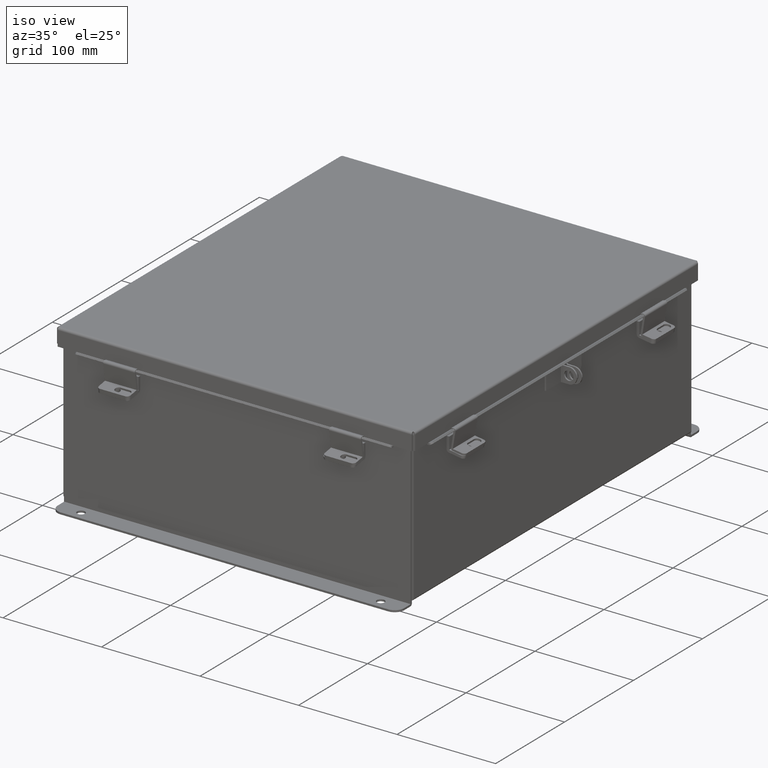
[diagram: clean part render]
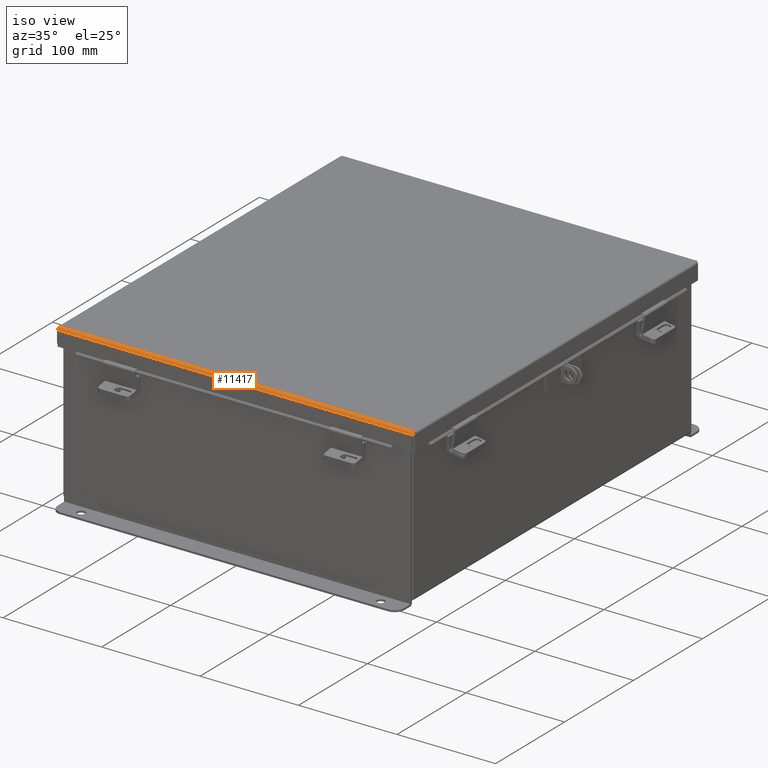
[diagram: same view with one face highlighted and labeled with its STEP entity id]
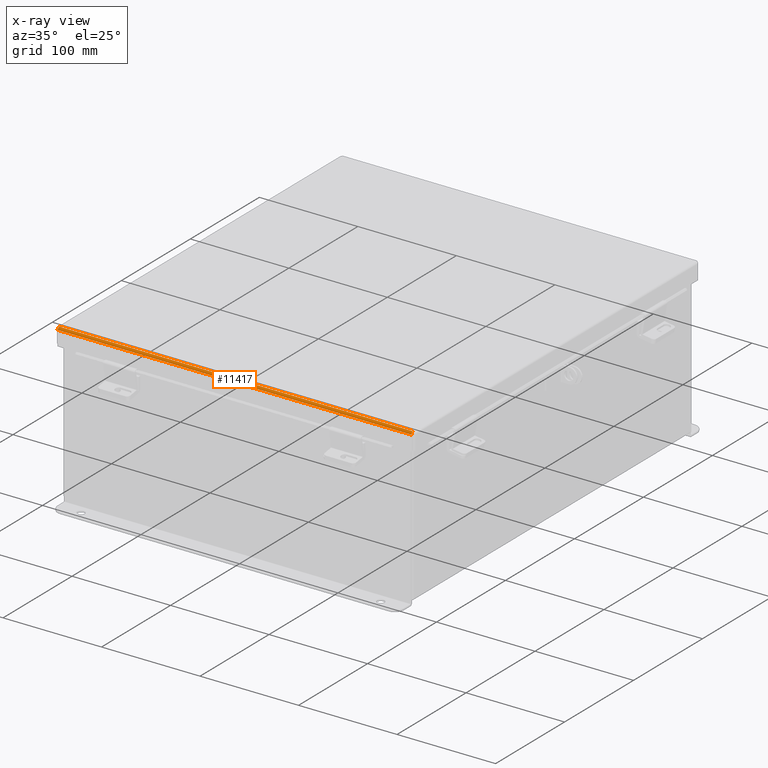
[diagram: x-ray of the same camera — body ghosted, the highlighted face saturated]
A machine part, iso view. The second image highlights one B-rep face of the part: STEP entity #11417.
The next image is the same camera in x-ray: the body ghosted, the highlighted face saturated — about 0% of this face is hidden behind the body in this view.
In plain terms, the highlighted cylindrical surface (edge-blend (fillet) strip) has radius 2.2276 mm, axis along (-1, 0, -0).
Its self-contained STEP definition (entity closure, byte-faithful):
#58 = VERTEX_POINT ( 'NONE', #5121 ) ;
#723 = ORIENTED_EDGE ( 'NONE', *, *, #6575, .T. ) ;
#1746 = EDGE_CURVE ( 'NONE', #12800, #58, #14318, .T. ) ;
#1752 = VERTEX_POINT ( 'NONE', #10792 ) ;
#2005 = VECTOR ( 'NONE', #3167, 39.37007874015748100 ) ;
#3121 = CARTESIAN_POINT ( 'NONE',  ( -7.074478932188133800, -8.156249999999998200, 0.01300000000000010700 ) ) ;
#3167 = DIRECTION ( 'NONE',  ( -1.000000000000000000, 2.239330294933626500E-032, -0.0000000000000000000 ) ) ;
#3175 = DIRECTION ( 'NONE',  ( -1.000000000000000000, -2.258600338820354400E-033, -0.0000000000000000000 ) ) ;
#3244 = CYLINDRICAL_SURFACE ( 'NONE', #18877, 0.08770000000000026400 ) ;
#3296 = CARTESIAN_POINT ( 'NONE',  ( -7.070526310729377400, -8.112717384578523600, -0.06363106625866844800 ) ) ;
#4874 = CARTESIAN_POINT ( 'NONE',  ( -7.072008543776412600, -8.138680782078321100, -0.04089574734180014700 ) ) ;
#5121 = CARTESIAN_POINT ( 'NONE',  ( 7.068550000000001000, -8.068549999999998300, -0.07470000000000015500 ) ) ;
#5377 = VERTEX_POINT ( 'NONE', #3121 ) ;
#6037 = CARTESIAN_POINT ( 'NONE',  ( -7.156249999999999100, -8.156249999999998200, 0.01300000000000010700 ) ) ;
#6334 = CARTESIAN_POINT ( 'NONE',  ( 7.074478932188133800, -8.156249999999998200, 0.01300000000000010700 ) ) ;
#6366 = CARTESIAN_POINT ( 'NONE',  ( -7.069044077682343100, -8.080029903154988700, -0.07469999999999998900 ) ) ;
#6438 = CARTESIAN_POINT ( 'NONE',  ( -7.073490776823442500, -8.153967403743807900, -0.009955289458309037400 ) ) ;
#6575 = EDGE_CURVE ( 'NONE', #12800, #5377, #18569, .T. ) ;
#6661 = ORIENTED_EDGE ( 'NONE', *, *, #9043, .F. ) ;
#7822 = CARTESIAN_POINT ( 'NONE',  ( 7.074478932188133800, -8.068549999999998300, -0.07470000000000015500 ) ) ;
#8020 = CARTESIAN_POINT ( 'NONE',  ( -7.074478932188133800, -8.156249999999998200, 0.01300000000000010700 ) ) ;
#8391 = VECTOR ( 'NONE', #3175, 39.37007874015748100 ) ;
#8473 = CARTESIAN_POINT ( 'NONE',  ( 7.072502621458754700, -8.145181066258663400, -0.03116738457852799200 ) ) ;
#9043 = EDGE_CURVE ( 'NONE', #1752, #5377, #15828, .T. ) ;
#9268 = EDGE_LOOP ( 'NONE', ( #12828, #19372, #723, #6661 ) ) ;
#9334 = DIRECTION ( 'NONE',  ( 1.000000000000000000, 2.258600338820354400E-033, 0.0000000000000000000 ) ) ;
#10792 = CARTESIAN_POINT ( 'NONE',  ( -7.068549999999999200, -8.068549999999998300, -0.07469999999999907300 ) ) ;
#11417 = ADVANCED_FACE ( 'NONE', ( #15657 ), #3244, .T. ) ;
#11432 = EDGE_CURVE ( 'NONE', #58, #1752, #16164, .T. ) ;
#12009 = CARTESIAN_POINT ( 'NONE',  ( 7.069538155364692300, -8.091505289458305900, -0.07241740374381128200 ) ) ;
#12448 = DIRECTION ( 'NONE',  ( 0.0000000000000000000, -1.000000000000000000, -3.577373637655407700E-015 ) ) ;
#12478 = CARTESIAN_POINT ( 'NONE',  ( 7.072008543776411700, -8.138680782078321100, -0.04089574734180012600 ) ) ;
#12638 = CARTESIAN_POINT ( 'NONE',  ( -7.069538155364692300, -8.091505289458309500, -0.07241740374381128200 ) ) ;
#12800 = VERTEX_POINT ( 'NONE', #13197 ) ;
#12828 = ORIENTED_EDGE ( 'NONE', *, *, #11432, .F. ) ;
#13162 = CARTESIAN_POINT ( 'NONE',  ( 7.073490776823444300, -8.153967403743809700, -0.009955289458309040900 ) ) ;
#13197 = CARTESIAN_POINT ( 'NONE',  ( 7.074478932188133800, -8.156249999999998200, 0.01300000000000010700 ) ) ;
#13558 = CARTESIAN_POINT ( 'NONE',  ( 7.068550000000001000, -8.068549999999998300, -0.07470000000000015500 ) ) ;
#13619 = CARTESIAN_POINT ( 'NONE',  ( 7.069044077682346700, -8.080029903154992300, -0.07469999999999998900 ) ) ;
#14008 = CARTESIAN_POINT ( 'NONE',  ( 7.074478932188133800, -8.068549999999998300, 0.01300000000000010700 ) ) ;
#14176 = CARTESIAN_POINT ( 'NONE',  ( -7.071020388411720400, -8.122445747341799900, -0.05713078207832045200 ) ) ;
#14318 = B_SPLINE_CURVE_WITH_KNOTS ( 'NONE', 3,
 ( #6334, #15302, #13162, #8473, #12478, #16490, #18199, #12009, #13619, #13558 ),
 .UNSPECIFIED., .F., .F.,
 ( 4, 2, 2, 2, 4 ),
 ( 0.0000000000000000000, 0.2500000000000000000, 0.5000000000000000000, 0.7500000000000000000, 1.000000000000000000 ),
 .UNSPECIFIED. ) ;
#15302 = CARTESIAN_POINT ( 'NONE',  ( 7.073984854505790000, -8.156250000000000000, 0.001520096845007104900 ) ) ;
#15657 = FACE_OUTER_BOUND ( 'NONE', #9268, .T. ) ;
#15756 = CARTESIAN_POINT ( 'NONE',  ( -7.072502621458754700, -8.145181066258665200, -0.03116738457852800300 ) ) ;
#15828 = B_SPLINE_CURVE_WITH_KNOTS ( 'NONE', 3,
 ( #18798, #6366, #12638, #3296, #14176, #4874, #15756, #6438, #17319, #8020 ),
 .UNSPECIFIED., .F., .F.,
 ( 4, 2, 2, 2, 4 ),
 ( 0.0000000000000000000, 0.2500000000000000000, 0.5000000000000000000, 0.7500000000000000000, 1.000000000000000000 ),
 .UNSPECIFIED. ) ;
#16164 = LINE ( 'NONE', #7822, #8391 ) ;
#16490 = CARTESIAN_POINT ( 'NONE',  ( 7.071020388411722200, -8.122445747341799900, -0.05713078207832045900 ) ) ;
#17319 = CARTESIAN_POINT ( 'NONE',  ( -7.073984854505790000, -8.156249999999998200, 0.001520096845007103900 ) ) ;
#18199 = CARTESIAN_POINT ( 'NONE',  ( 7.070526310729379200, -8.112717384578527200, -0.06363106625866843400 ) ) ;
#18569 = LINE ( 'NONE', #6037, #2005 ) ;
#18798 = CARTESIAN_POINT ( 'NONE',  ( -7.068549999999999200, -8.068549999999998300, -0.07469999999999907300 ) ) ;
#18877 = AXIS2_PLACEMENT_3D ( 'NONE', #14008, #9334, #12448 ) ;
#19372 = ORIENTED_EDGE ( 'NONE', *, *, #1746, .F. ) ;